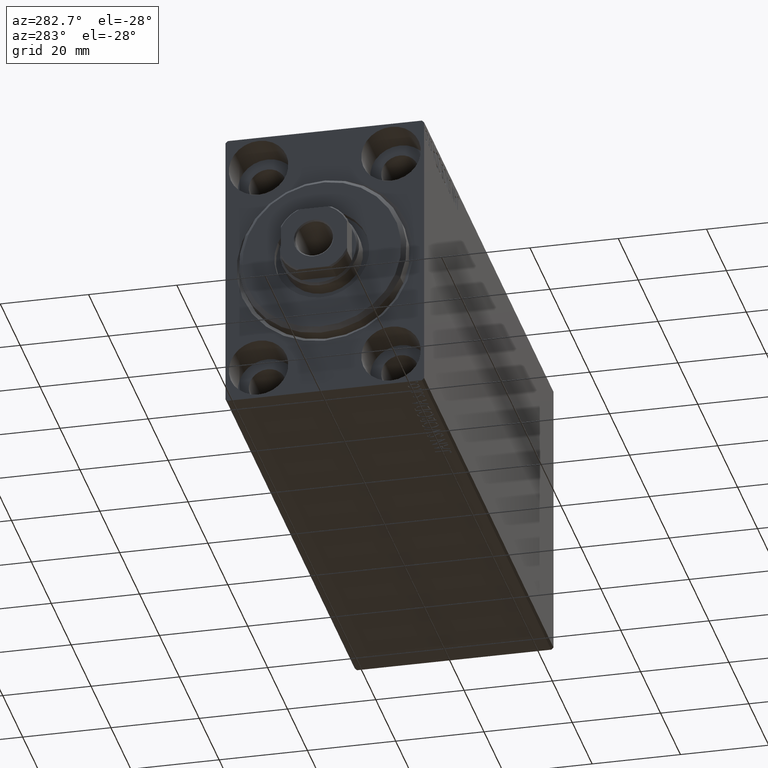
[diagram: clean part render]
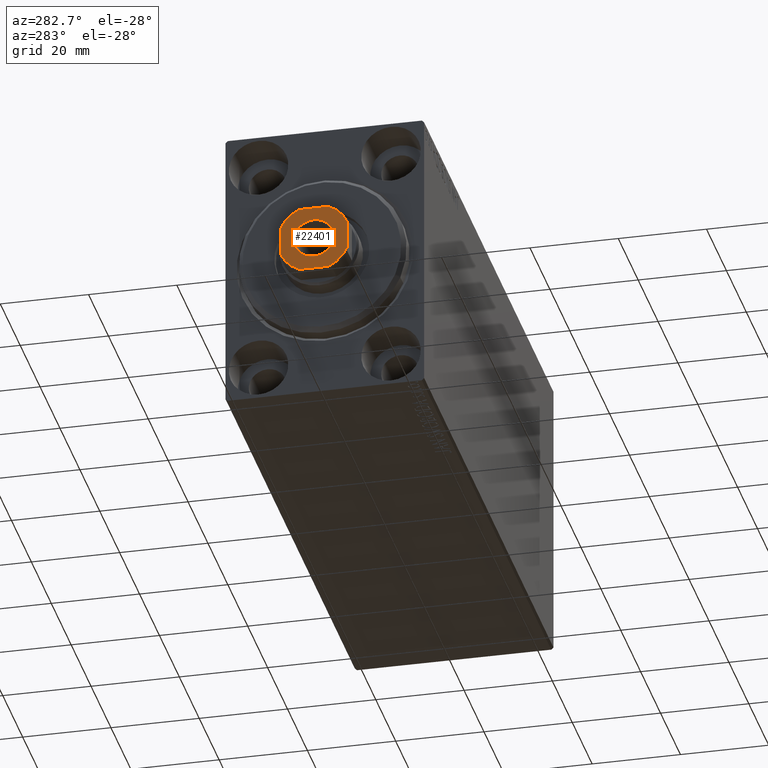
[diagram: same view with one face highlighted and labeled with its STEP entity id]
A machine part, auxiliary view. The second image highlights one B-rep face of the part: STEP entity #22401.
In plain terms, the highlighted planar face has unit normal (-1, 0, 0).
Its self-contained STEP definition (entity closure, byte-faithful):
#238 = LINE ( 'NONE', #17935, #29425 ) ;
#554 = CARTESIAN_POINT ( 'NONE',  ( 7.499999999999998224, -3.315116890850224429, 135.0000000000000000 ) ) ;
#1334 = CARTESIAN_POINT ( 'NONE',  ( -4.549999999999984723, 5.572142936120437605E-16, 135.0000000000000000 ) ) ;
#1594 = DIRECTION ( 'NONE',  ( 1.000000000000000000, 0.000000000000000000, 0.000000000000000000 ) ) ;
#1860 = DIRECTION ( 'NONE',  ( -0.000000000000000000, 0.000000000000000000, 1.000000000000000000 ) ) ;
#1944 = ORIENTED_EDGE ( 'NONE', *, *, #3369, .T. ) ;
#1999 = ORIENTED_EDGE ( 'NONE', *, *, #4781, .T. ) ;
#2120 = ORIENTED_EDGE ( 'NONE', *, *, #6667, .T. ) ;
#2254 = VERTEX_POINT ( 'NONE', #36355 ) ;
#2755 = CARTESIAN_POINT ( 'NONE',  ( 3.315116890850226206, -7.499999999999996447, 135.0000000000000000 ) ) ;
#3176 = DIRECTION ( 'NONE',  ( -0.000000000000000000, 0.000000000000000000, 1.000000000000000000 ) ) ;
#3337 = EDGE_CURVE ( 'NONE', #16775, #29505, #13777, .T. ) ;
#3369 = EDGE_CURVE ( 'NONE', #29505, #34575, #28870, .T. ) ;
#4440 = DIRECTION ( 'NONE',  ( 1.000000000000000000, 0.000000000000000000, 0.000000000000000000 ) ) ;
#4781 = EDGE_CURVE ( 'NONE', #34575, #31211, #40664, .T. ) ;
#4960 = DIRECTION ( 'NONE',  ( -1.156482317317871478E-16, 1.000000000000000000, -0.000000000000000000 ) ) ;
#6405 = DIRECTION ( 'NONE',  ( 1.000000000000000000, 0.000000000000000000, 0.000000000000000000 ) ) ;
#6667 = EDGE_CURVE ( 'NONE', #18152, #16775, #238, .T. ) ;
#7118 = CIRCLE ( 'NONE', #13508, 4.549999999999984723 ) ;
#7187 = ORIENTED_EDGE ( 'NONE', *, *, #32824, .T. ) ;
#7433 = VERTEX_POINT ( 'NONE', #21502 ) ;
#7999 = CARTESIAN_POINT ( 'NONE',  ( -3.315116890850128950, -7.499999999999998224, 135.0000000000000000 ) ) ;
#8870 = ORIENTED_EDGE ( 'NONE', *, *, #43465, .T. ) ;
#8973 = AXIS2_PLACEMENT_3D ( 'NONE', #23215, #9918, #39833 ) ;
#9188 = AXIS2_PLACEMENT_3D ( 'NONE', #15828, #3176, #29974 ) ;
#9609 = FACE_BOUND ( 'NONE', #21667, .T. ) ;
#9700 = DIRECTION ( 'NONE',  ( -0.000000000000000000, 0.000000000000000000, 1.000000000000000000 ) ) ;
#9703 = ORIENTED_EDGE ( 'NONE', *, *, #9858, .T. ) ;
#9846 = LINE ( 'NONE', #30429, #13494 ) ;
#9858 = EDGE_CURVE ( 'NONE', #31099, #7433, #16647, .T. ) ;
#9883 = ORIENTED_EDGE ( 'NONE', *, *, #30413, .T. ) ;
#9918 = DIRECTION ( 'NONE',  ( -0.000000000000000000, 0.000000000000000000, 1.000000000000000000 ) ) ;
#10012 = CIRCLE ( 'NONE', #26297, 8.199999999999986855 ) ;
#10236 = VECTOR ( 'NONE', #4960, 1000.000000000000000 ) ;
#10826 = CARTESIAN_POINT ( 'NONE',  ( -3.315116890850167586, 7.500000000000000888, 135.0000000000000000 ) ) ;
#11318 = CARTESIAN_POINT ( 'NONE',  ( 7.499999999999998224, 3.315116890850132059, 135.0000000000000000 ) ) ;
#12480 = CARTESIAN_POINT ( 'NONE',  ( 0.000000000000000000, 0.000000000000000000, 135.0000000000000000 ) ) ;
#13024 = CARTESIAN_POINT ( 'NONE',  ( 0.000000000000000000, 0.000000000000000000, 135.0000000000000000 ) ) ;
#13052 = CARTESIAN_POINT ( 'NONE',  ( 0.000000000000000000, 0.000000000000000000, 135.0000000000000000 ) ) ;
#13494 = VECTOR ( 'NONE', #14047, 1000.000000000000000 ) ;
#13508 = AXIS2_PLACEMENT_3D ( 'NONE', #13052, #26552, #6405 ) ;
#13536 = EDGE_CURVE ( 'NONE', #18507, #29695, #15365, .T. ) ;
#13777 = CIRCLE ( 'NONE', #42068, 8.200000000000025935 ) ;
#14047 = DIRECTION ( 'NONE',  ( -1.000000000000000000, 5.782411586589357392E-17, -0.000000000000000000 ) ) ;
#15365 = CIRCLE ( 'NONE', #8973, 8.200000000000006395 ) ;
#15828 = CARTESIAN_POINT ( 'NONE',  ( 0.000000000000000000, 0.000000000000000000, 135.0000000000000000 ) ) ;
#15935 = AXIS2_PLACEMENT_3D ( 'NONE', #32586, #31700, #1594 ) ;
#16647 = CIRCLE ( 'NONE', #27258, 4.549999999999984723 ) ;
#16772 = DIRECTION ( 'NONE',  ( 1.000000000000000000, 0.000000000000000000, 0.000000000000000000 ) ) ;
#16775 = VERTEX_POINT ( 'NONE', #2755 ) ;
#17935 = CARTESIAN_POINT ( 'NONE',  ( -7.499999999999999112, -7.499999999999998224, 135.0000000000000000 ) ) ;
#18152 = VERTEX_POINT ( 'NONE', #7999 ) ;
#18507 = VERTEX_POINT ( 'NONE', #10826 ) ;
#19697 = ORIENTED_EDGE ( 'NONE', *, *, #3337, .T. ) ;
#21502 = CARTESIAN_POINT ( 'NONE',  ( 4.549999999999984723, 0.000000000000000000, 135.0000000000000000 ) ) ;
#21578 = CARTESIAN_POINT ( 'NONE',  ( 7.499999999999997335, 7.500000000000000888, 135.0000000000000000 ) ) ;
#21667 = EDGE_LOOP ( 'NONE', ( #9883, #9703 ) ) ;
#22167 = CARTESIAN_POINT ( 'NONE',  ( 3.315116890850126286, 7.500000000000000888, 135.0000000000000000 ) ) ;
#22401 = ADVANCED_FACE ( 'NONE', ( #9609, #25792 ), #32652, .T. ) ;
#22713 = ORIENTED_EDGE ( 'NONE', *, *, #35930, .T. ) ;
#23215 = CARTESIAN_POINT ( 'NONE',  ( 0.000000000000000000, 0.000000000000000000, 135.0000000000000000 ) ) ;
#23381 = DIRECTION ( 'NONE',  ( 0.000000000000000000, -0.000000000000000000, -1.000000000000000000 ) ) ;
#23549 = VECTOR ( 'NONE', #33450, 1000.000000000000000 ) ;
#25333 = DIRECTION ( 'NONE',  ( 1.000000000000000000, 0.000000000000000000, 0.000000000000000000 ) ) ;
#25792 = FACE_OUTER_BOUND ( 'NONE', #35159, .T. ) ;
#26297 = AXIS2_PLACEMENT_3D ( 'NONE', #13024, #9700, #16772 ) ;
#26552 = DIRECTION ( 'NONE',  ( 0.000000000000000000, -0.000000000000000000, -1.000000000000000000 ) ) ;
#27258 = AXIS2_PLACEMENT_3D ( 'NONE', #40206, #23381, #36886 ) ;
#28870 = LINE ( 'NONE', #21578, #10236 ) ;
#29425 = VECTOR ( 'NONE', #4440, 1000.000000000000000 ) ;
#29505 = VERTEX_POINT ( 'NONE', #554 ) ;
#29695 = VERTEX_POINT ( 'NONE', #43276 ) ;
#29974 = DIRECTION ( 'NONE',  ( 1.000000000000000000, 0.000000000000000000, 0.000000000000000000 ) ) ;
#30413 = EDGE_CURVE ( 'NONE', #7433, #31099, #7118, .T. ) ;
#30429 = CARTESIAN_POINT ( 'NONE',  ( -7.500000000000001776, 7.500000000000001776, 135.0000000000000000 ) ) ;
#31099 = VERTEX_POINT ( 'NONE', #1334 ) ;
#31211 = VERTEX_POINT ( 'NONE', #22167 ) ;
#31700 = DIRECTION ( 'NONE',  ( -0.000000000000000000, 0.000000000000000000, 1.000000000000000000 ) ) ;
#32586 = CARTESIAN_POINT ( 'NONE',  ( 0.000000000000000000, 0.000000000000000000, 135.0000000000000000 ) ) ;
#32652 = PLANE ( 'NONE',  #9188 ) ;
#32824 = EDGE_CURVE ( 'NONE', #31211, #18507, #9846, .T. ) ;
#33450 = DIRECTION ( 'NONE',  ( 1.734723475976807094E-16, -1.000000000000000000, 0.000000000000000000 ) ) ;
#34575 = VERTEX_POINT ( 'NONE', #11318 ) ;
#35159 = EDGE_LOOP ( 'NONE', ( #1944, #1999, #7187, #37653, #8870, #22713, #2120, #19697 ) ) ;
#35930 = EDGE_CURVE ( 'NONE', #2254, #18152, #10012, .T. ) ;
#36355 = CARTESIAN_POINT ( 'NONE',  ( -7.499999999999999112, -3.315116890850124065, 135.0000000000000000 ) ) ;
#36886 = DIRECTION ( 'NONE',  ( 1.000000000000000000, 0.000000000000000000, 0.000000000000000000 ) ) ;
#37653 = ORIENTED_EDGE ( 'NONE', *, *, #13536, .T. ) ;
#39833 = DIRECTION ( 'NONE',  ( 1.000000000000000000, 0.000000000000000000, 0.000000000000000000 ) ) ;
#40206 = CARTESIAN_POINT ( 'NONE',  ( 0.000000000000000000, 0.000000000000000000, 135.0000000000000000 ) ) ;
#40305 = CARTESIAN_POINT ( 'NONE',  ( -7.500000000000001776, 7.500000000000001776, 135.0000000000000000 ) ) ;
#40526 = LINE ( 'NONE', #40305, #23549 ) ;
#40664 = CIRCLE ( 'NONE', #15935, 8.199999999999988631 ) ;
#42068 = AXIS2_PLACEMENT_3D ( 'NONE', #12480, #1860, #25333 ) ;
#43276 = CARTESIAN_POINT ( 'NONE',  ( -7.500000000000000888, 3.315116890850168030, 135.0000000000000000 ) ) ;
#43465 = EDGE_CURVE ( 'NONE', #29695, #2254, #40526, .T. ) ;